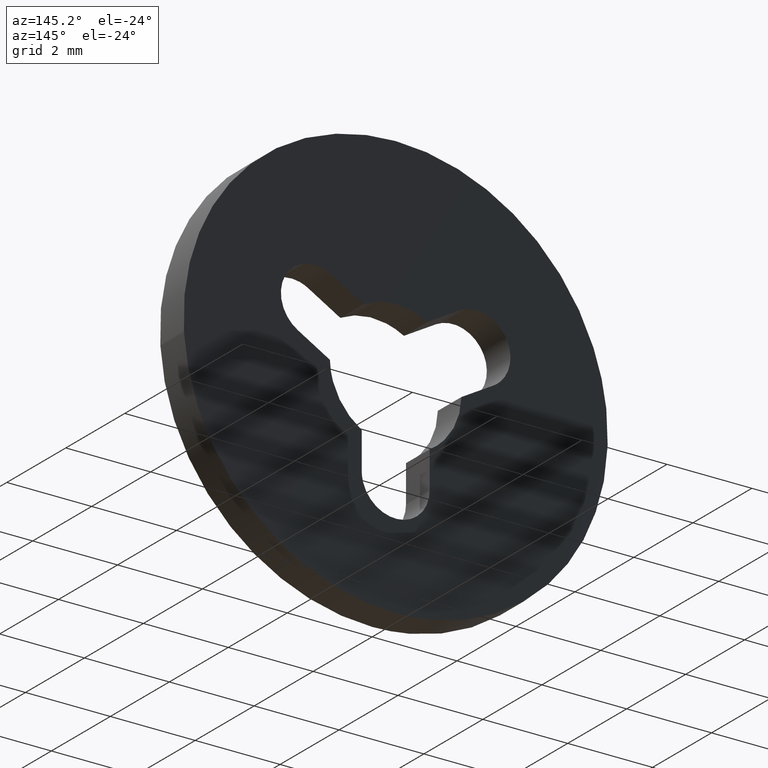
[diagram: clean part render]
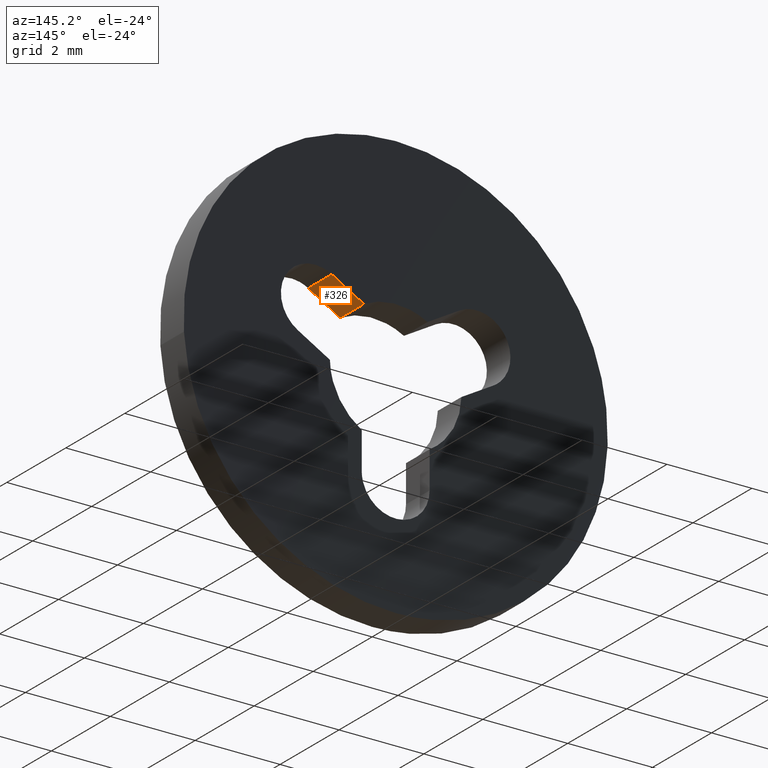
[diagram: same view with one face highlighted and labeled with its STEP entity id]
A machine part, auxiliary view. The second image highlights one B-rep face of the part: STEP entity #326.
In plain terms, the highlighted face is a freeform B-spline surface patch.
Its self-contained STEP definition (entity closure, byte-faithful):
#250=CARTESIAN_POINT('',(1.505200000000000,0.0,1.792900000000000));
#251=VERTEX_POINT('',#250);
#267=CARTESIAN_POINT('',(1.505200000000000,0.800000000000023,1.792900000000000));
#268=VERTEX_POINT('',#267);
#269=CARTESIAN_POINT('',(1.505200000000000,0.800000000000023,1.792900000000000));
#270=CARTESIAN_POINT('',(1.505200000000000,0.0,1.792900000000000));
#271=QUASI_UNIFORM_CURVE('',1,(#269,#270),.UNSPECIFIED.,.F.,.U.);
#272=EDGE_CURVE('',#268,#251,#271,.T.);
#299=CARTESIAN_POINT('',(1.542940244300294,-0.039959998449446,1.814689933241280));
#300=CARTESIAN_POINT('',(0.711899408414330,-0.039959998449446,1.334875224288987));
#301=CARTESIAN_POINT('',(1.542940244300294,0.839960019907141,1.814689933241280));
#302=CARTESIAN_POINT('',(0.711899408414330,0.839960019907141,1.334875224288987));
#303=B_SPLINE_SURFACE_WITH_KNOTS('',1,1,((#299,#301),(#300,#302)),.UNSPECIFIED.,.F.,.F.,.U.,(2,2),(2,2),(0.041708327125758,0.958291687775403),(0.041708334948495,0.958291687403247),.UNSPECIFIED.);
#304=CARTESIAN_POINT('',(0.749639666225095,0.0,1.356665165330756));
#305=VERTEX_POINT('',#304);
#306=CARTESIAN_POINT('',(0.749639666225095,0.0,1.356665165330756));
#307=CARTESIAN_POINT('',(1.505200000000000,0.0,1.792900000000000));
#308=QUASI_UNIFORM_CURVE('',1,(#306,#307),.UNSPECIFIED.,.F.,.U.);
#309=EDGE_CURVE('',#305,#251,#308,.T.);
#310=ORIENTED_EDGE('',*,*,#309,.F.);
#311=CARTESIAN_POINT('',(0.749639666225095,0.800000000000023,1.356665165330756));
#312=VERTEX_POINT('',#311);
#313=CARTESIAN_POINT('',(0.749639666225095,0.800000000000023,1.356665165330756));
#314=CARTESIAN_POINT('',(0.749639666225095,0.0,1.356665165330756));
#315=QUASI_UNIFORM_CURVE('',1,(#313,#314),.UNSPECIFIED.,.F.,.U.);
#316=EDGE_CURVE('',#312,#305,#315,.T.);
#317=ORIENTED_EDGE('',*,*,#316,.F.);
#318=CARTESIAN_POINT('',(0.749639666225095,0.800000000000023,1.356665165330756));
#319=CARTESIAN_POINT('',(1.505200000000000,0.800000000000023,1.792900000000000));
#320=QUASI_UNIFORM_CURVE('',1,(#318,#319),.UNSPECIFIED.,.F.,.U.);
#321=EDGE_CURVE('',#312,#268,#320,.T.);
#322=ORIENTED_EDGE('',*,*,#321,.T.);
#323=ORIENTED_EDGE('',*,*,#272,.T.);
#324=EDGE_LOOP('',(#310,#317,#322,#323));
#325=FACE_OUTER_BOUND('',#324,.T.);
#326=ADVANCED_FACE('',(#325),#303,.T.);